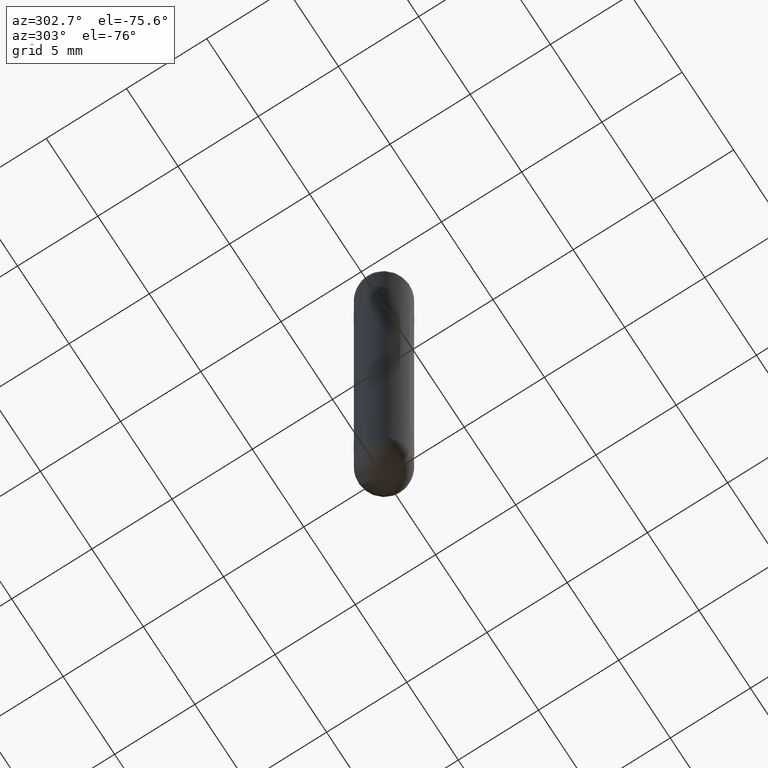
[diagram: clean part render]
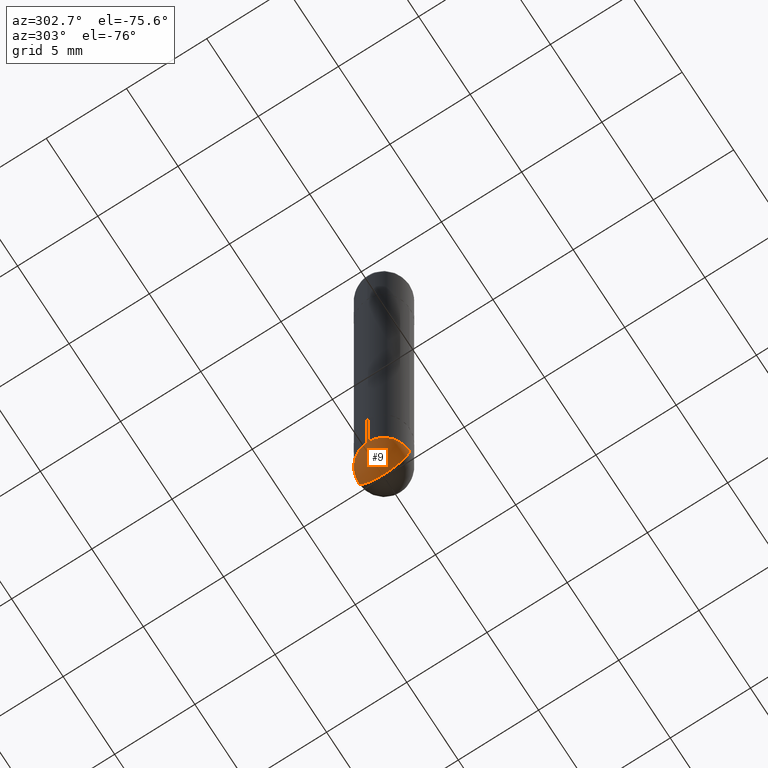
[diagram: same view with one face highlighted and labeled with its STEP entity id]
A machine part, auxiliary view. The second image highlights one B-rep face of the part: STEP entity #9.
In plain terms, the highlighted spherical surface has radius 1.5875 mm.
Its self-contained STEP definition (entity closure, byte-faithful):
#1 = DIRECTION ( 'NONE',  ( -7.105427357601000281E-15, -1.000000000000000000, 0.000000000000000000 ) ) ;
#9 = ADVANCED_FACE ( 'NONE', ( #317 ), #88, .T. ) ;
#12 = ORIENTED_EDGE ( 'NONE', *, *, #278, .F. ) ;
#17 = AXIS2_PLACEMENT_3D ( 'NONE', #178, #552, #565 ) ;
#27 = DIRECTION ( 'NONE',  ( -2.445468806185136597E-29, 3.491481338843145583E-15, 1.000000000000000000 ) ) ;
#61 = CARTESIAN_POINT ( 'NONE',  ( 3.184241630977248732E-29, -5.493186792727072638E-15, -1.437500000000000222 ) ) ;
#69 = CIRCLE ( 'NONE', #198, 0.06250000000000001388 ) ;
#71 = CIRCLE ( 'NONE', #358, 0.06250000000000001388 ) ;
#75 = EDGE_CURVE ( 'NONE', #308, #551, #69, .T. ) ;
#88 = SPHERICAL_SURFACE ( 'NONE', #239, 0.06250000000000022204 ) ;
#102 = CARTESIAN_POINT ( 'NONE',  ( 3.515361408891134418E-29, -5.019004424587023131E-15, -1.437500000000000222 ) ) ;
#123 = CIRCLE ( 'NONE', #557, 0.06250000000000022204 ) ;
#127 = ORIENTED_EDGE ( 'NONE', *, *, #75, .F. ) ;
#138 = CARTESIAN_POINT ( 'NONE',  ( 3.184241630977248732E-29, -5.493186792727072638E-15, -1.437500000000000222 ) ) ;
#167 = DIRECTION ( 'NONE',  ( 1.000000000000000000, -6.982962677686261189E-15, 0.000000000000000000 ) ) ;
#178 = CARTESIAN_POINT ( 'NONE',  ( 3.184241630977248732E-29, -5.493186792727072638E-15, -1.437500000000000222 ) ) ;
#198 = AXIS2_PLACEMENT_3D ( 'NONE', #102, #27, #167 ) ;
#239 = AXIS2_PLACEMENT_3D ( 'NONE', #138, #574, #589 ) ;
#264 = EDGE_CURVE ( 'NONE', #273, #739, #123, .T. ) ;
#273 = VERTEX_POINT ( 'NONE', #561 ) ;
#278 = EDGE_CURVE ( 'NONE', #273, #308, #462, .T. ) ;
#282 = DIRECTION ( 'NONE',  ( 1.000000000000000000, -6.982962677686261189E-15, 0.000000000000000000 ) ) ;
#308 = VERTEX_POINT ( 'NONE', #372 ) ;
#317 = FACE_OUTER_BOUND ( 'NONE', #468, .T. ) ;
#358 = AXIS2_PLACEMENT_3D ( 'NONE', #470, #792, #282 ) ;
#370 = DIRECTION ( 'NONE',  ( -1.000000000000000000, 7.105427357601001070E-15, -4.926315508542082329E-29 ) ) ;
#372 = CARTESIAN_POINT ( 'NONE',  ( 4.364351673554259849E-16, 0.06249999999999485828, -1.437500000000000444 ) ) ;
#462 = CIRCLE ( 'NONE', #17, 0.06250000000000022204 ) ;
#468 = EDGE_LOOP ( 'NONE', ( #12, #726, #818, #127 ) ) ;
#470 = CARTESIAN_POINT ( 'NONE',  ( 3.515361408891134418E-29, -5.019004424587023131E-15, -1.437500000000000222 ) ) ;
#551 = VERTEX_POINT ( 'NONE', #788 ) ;
#552 = DIRECTION ( 'NONE',  ( 1.000000000000000000, -6.982962677686265922E-15, 4.883557194083112340E-29 ) ) ;
#557 = AXIS2_PLACEMENT_3D ( 'NONE', #61, #370, #1 ) ;
#561 = CARTESIAN_POINT ( 'NONE',  ( 3.339755826017505569E-29, -5.707577355157435366E-15, -1.500000000000000444 ) ) ;
#565 = DIRECTION ( 'NONE',  ( 6.982962677686266711E-15, 1.000000000000000000, 0.000000000000000000 ) ) ;
#568 = EDGE_CURVE ( 'NONE', #551, #739, #71, .T. ) ;
#574 = DIRECTION ( 'NONE',  ( -1.000000000000000000, 6.982962677686266711E-15, -4.883557194083112901E-29 ) ) ;
#589 = DIRECTION ( 'NONE',  ( 6.982962677686266711E-15, 1.000000000000000000, -4.370956789862805372E-15 ) ) ;
#644 = CARTESIAN_POINT ( 'NONE',  ( -4.440892098500298784E-16, -0.06250000000000537070, -1.437500000000000000 ) ) ;
#726 = ORIENTED_EDGE ( 'NONE', *, *, #264, .T. ) ;
#739 = VERTEX_POINT ( 'NONE', #644 ) ;
#788 = CARTESIAN_POINT ( 'NONE',  ( -0.06250000000000001388, -4.247588839220414790E-15, -1.437500000000000222 ) ) ;
#792 = DIRECTION ( 'NONE',  ( -2.445468806185136597E-29, 3.491481338843145583E-15, 1.000000000000000000 ) ) ;
#818 = ORIENTED_EDGE ( 'NONE', *, *, #568, .F. ) ;